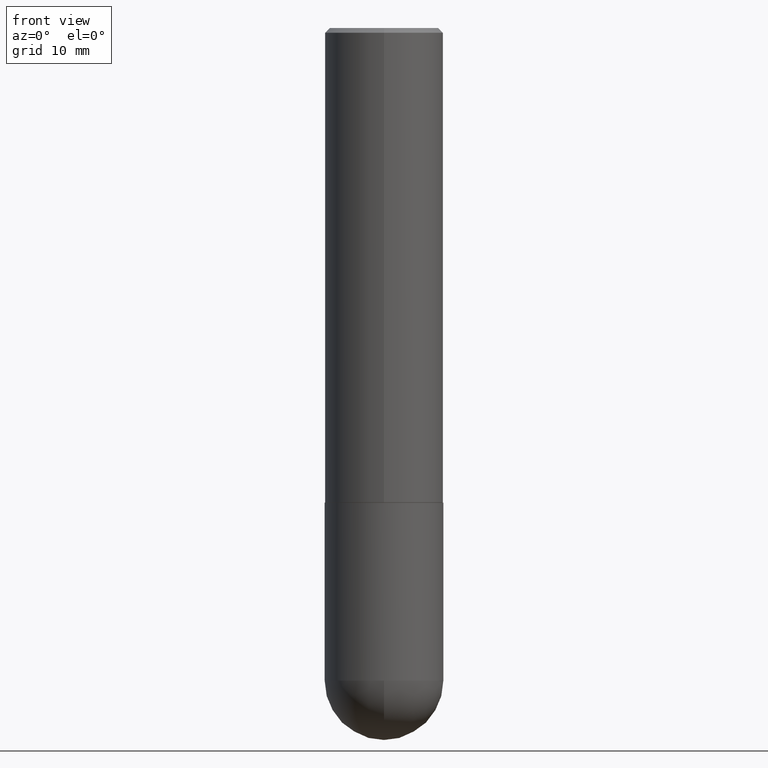
[diagram: clean part render]
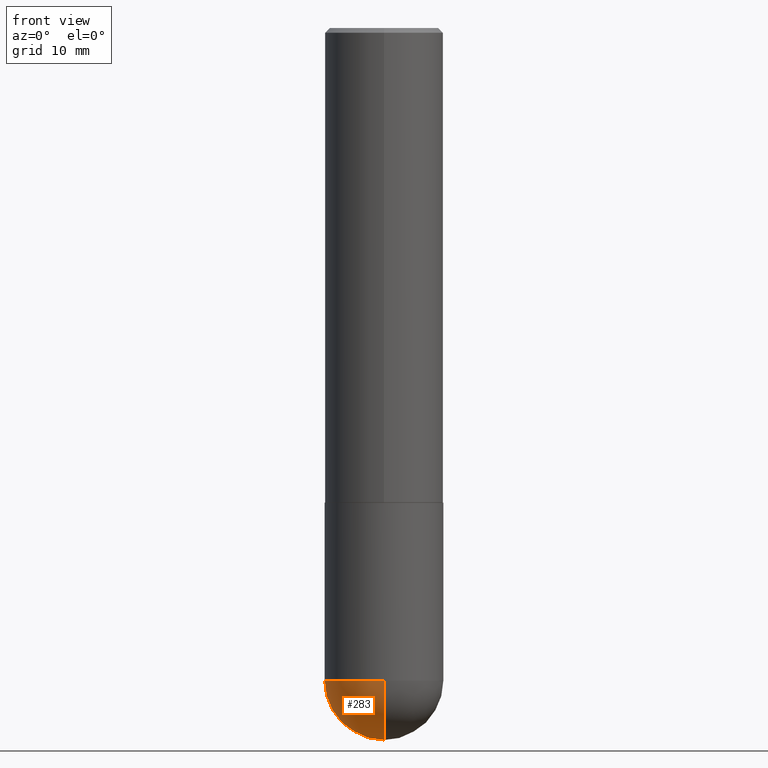
[diagram: same view with one face highlighted and labeled with its STEP entity id]
A machine part, front view. The second image highlights one B-rep face of the part: STEP entity #283.
In plain terms, the highlighted spherical surface has radius 6.35 mm.
Its self-contained STEP definition (entity closure, byte-faithful):
#37 = CARTESIAN_POINT ( 'NONE',  ( -1.776356839400184989E-15, -0.2500000000000098810, -2.749999999999999556 ) ) ;
#38 = CARTESIAN_POINT ( 'NONE',  ( 6.725039217009125641E-29, -9.601573681818653015E-15, -2.750000000000000444 ) ) ;
#57 = CARTESIAN_POINT ( 'NONE',  ( -0.2500000000000000000, -6.515911340352222809E-15, -2.750000000000000444 ) ) ;
#60 = CARTESIAN_POINT ( 'NONE',  ( 1.745740669421632745E-15, 0.2499999999999902300, -2.750000000000001332 ) ) ;
#74 = AXIS2_PLACEMENT_3D ( 'NONE', #95, #380, #128 ) ;
#76 = VERTEX_POINT ( 'NONE', #57 ) ;
#87 = EDGE_CURVE ( 'NONE', #389, #170, #205, .T. ) ;
#92 = AXIS2_PLACEMENT_3D ( 'NONE', #38, #238, #303 ) ;
#95 = CARTESIAN_POINT ( 'NONE',  ( 6.725039217009125641E-29, -9.601573681818653015E-15, -2.750000000000000444 ) ) ;
#104 = CIRCLE ( 'NONE', #74, 0.2500000000000000000 ) ;
#123 = DIRECTION ( 'NONE',  ( -1.000000000000000000, 7.105427357601001070E-15, -4.926315508542082329E-29 ) ) ;
#127 = DIRECTION ( 'NONE',  ( -1.000000000000000000, 6.982962677686265922E-15, -4.883557194083113462E-29 ) ) ;
#128 = DIRECTION ( 'NONE',  ( 1.000000000000000000, -6.982962677686270655E-15, 0.000000000000000000 ) ) ;
#133 = CARTESIAN_POINT ( 'NONE',  ( 7.015976219256266741E-29, -1.093331829968014633E-14, -3.000000000000000888 ) ) ;
#170 = VERTEX_POINT ( 'NONE', #37 ) ;
#171 = DIRECTION ( 'NONE',  ( 1.000000000000000000, -6.982962677686265922E-15, 4.883557194083112340E-29 ) ) ;
#184 = VERTEX_POINT ( 'NONE', #60 ) ;
#186 = EDGE_LOOP ( 'NONE', ( #366, #338, #274, #397 ) ) ;
#195 = CIRCLE ( 'NONE', #328, 0.2500000000000001110 ) ;
#202 = CARTESIAN_POINT ( 'NONE',  ( 6.393919439095240515E-29, -1.007575604995870173E-14, -2.750000000000000444 ) ) ;
#205 = CIRCLE ( 'NONE', #322, 0.2500000000000001110 ) ;
#206 = AXIS2_PLACEMENT_3D ( 'NONE', #410, #127, #382 ) ;
#220 = CIRCLE ( 'NONE', #92, 0.2500000000000000000 ) ;
#222 = FACE_OUTER_BOUND ( 'NONE', #186, .T. ) ;
#237 = EDGE_CURVE ( 'NONE', #76, #170, #104, .T. ) ;
#238 = DIRECTION ( 'NONE',  ( -2.445468806185136597E-29, 3.491481338843145583E-15, 1.000000000000000000 ) ) ;
#274 = ORIENTED_EDGE ( 'NONE', *, *, #237, .F. ) ;
#283 = ADVANCED_FACE ( 'NONE', ( #222 ), #290, .T. ) ;
#290 = SPHERICAL_SURFACE ( 'NONE', #206, 0.2500000000000001110 ) ;
#303 = DIRECTION ( 'NONE',  ( 1.000000000000000000, -6.982962677686270655E-15, 0.000000000000000000 ) ) ;
#322 = AXIS2_PLACEMENT_3D ( 'NONE', #372, #123, #376 ) ;
#328 = AXIS2_PLACEMENT_3D ( 'NONE', #202, #171, #391 ) ;
#338 = ORIENTED_EDGE ( 'NONE', *, *, #87, .T. ) ;
#366 = ORIENTED_EDGE ( 'NONE', *, *, #386, .F. ) ;
#372 = CARTESIAN_POINT ( 'NONE',  ( 6.393919439095240515E-29, -1.007575604995870173E-14, -2.750000000000000444 ) ) ;
#376 = DIRECTION ( 'NONE',  ( -7.105427357601001859E-15, -1.000000000000000000, 0.000000000000000000 ) ) ;
#380 = DIRECTION ( 'NONE',  ( -2.445468806185136597E-29, 3.491481338843145583E-15, 1.000000000000000000 ) ) ;
#381 = EDGE_CURVE ( 'NONE', #184, #76, #220, .T. ) ;
#382 = DIRECTION ( 'NONE',  ( 6.982962677686265922E-15, 1.000000000000000000, -4.370956789862818783E-15 ) ) ;
#386 = EDGE_CURVE ( 'NONE', #389, #184, #195, .T. ) ;
#389 = VERTEX_POINT ( 'NONE', #133 ) ;
#391 = DIRECTION ( 'NONE',  ( 6.982962677686266711E-15, 1.000000000000000000, 0.000000000000000000 ) ) ;
#397 = ORIENTED_EDGE ( 'NONE', *, *, #381, .F. ) ;
#410 = CARTESIAN_POINT ( 'NONE',  ( 6.393919439095240515E-29, -1.007575604995870173E-14, -2.750000000000000444 ) ) ;